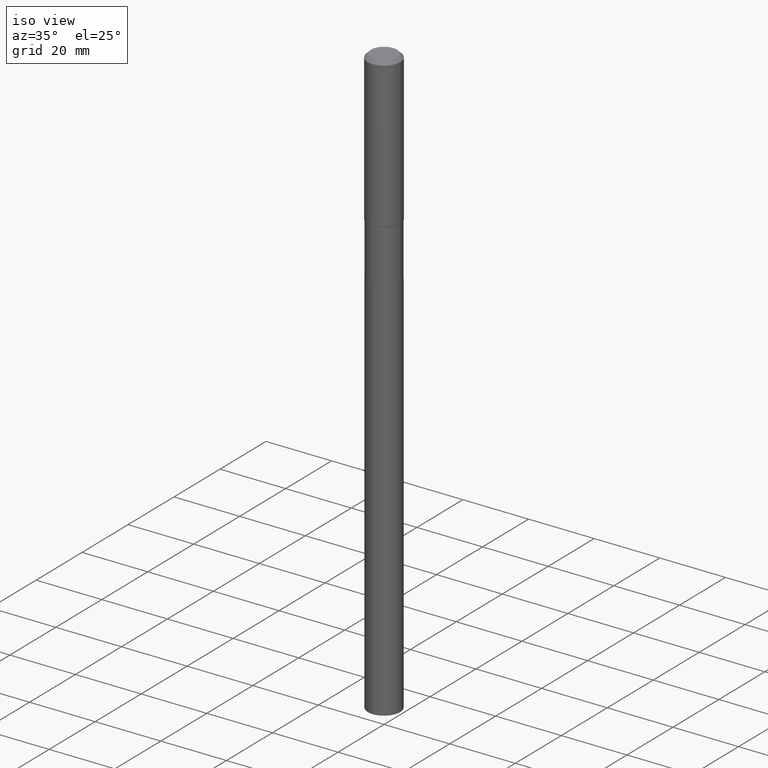
[diagram: clean part render]
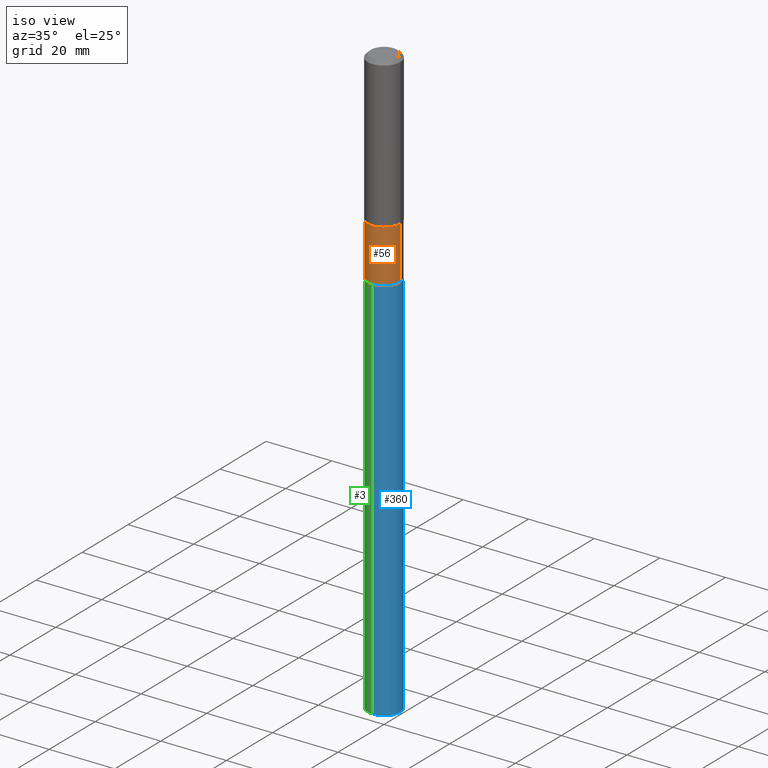
[diagram: same view with three faces highlighted in distinct colors, each labeled with its STEP entity id]
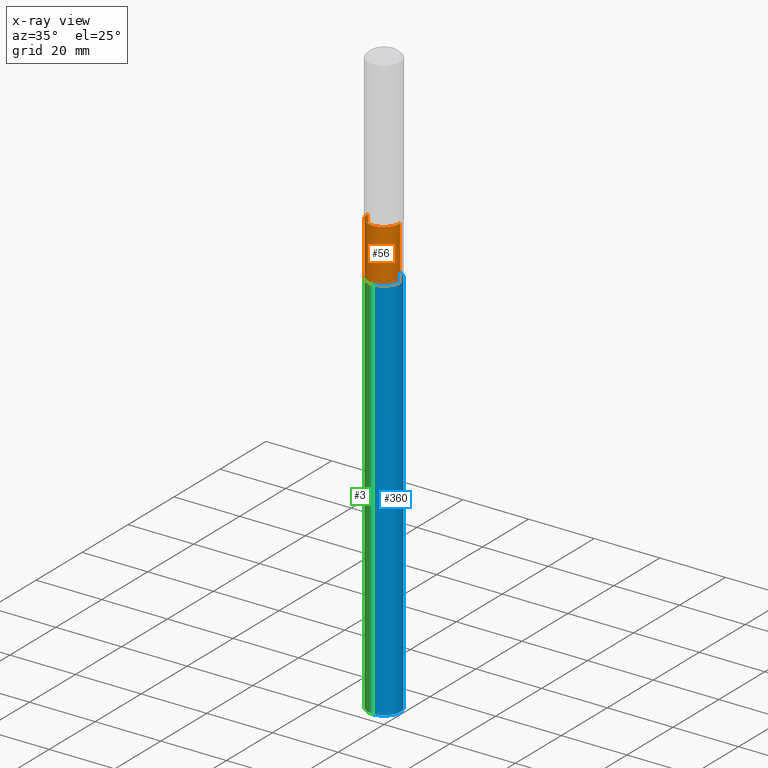
[diagram: x-ray of the same camera — body ghosted, the three highlighted faces saturated]
A machine part, iso view with three faces highlighted in distinct colors.
The next image is the same camera in x-ray (body ghosted, the three faces saturated) — at least one of them is partly hidden behind the body in this view.
Their STEP definitions:

[orange] entity #56 — the highlighted cylindrical surface (edge-blend (fillet) strip) has radius 4.8997 mm, axis along (-0, 0, 1).
#34 = ORIENTED_EDGE ( 'NONE', *, *, #50, .T. ) ;
#37 = CARTESIAN_POINT ( 'NONE',  ( -0.1928999999999999326, 1.370636937281232780E-15, -9.488625789101710361E-30 ) ) ;
#50 = EDGE_CURVE ( 'NONE', #213, #103, #292, .T. ) ;
#56 = ADVANCED_FACE ( 'NONE', ( #440 ), #402, .T. ) ;
#64 = ORIENTED_EDGE ( 'NONE', *, *, #459, .F. ) ;
#67 = DIRECTION ( 'NONE',  ( -2.445468806185136597E-29, 3.491481338843145583E-15, 1.000000000000000000 ) ) ;
#68 = ORIENTED_EDGE ( 'NONE', *, *, #209, .F. ) ;
#85 = AXIS2_PLACEMENT_3D ( 'NONE', #266, #180, #334 ) ;
#88 = AXIS2_PLACEMENT_3D ( 'NONE', #118, #67, #105 ) ;
#103 = VERTEX_POINT ( 'NONE', #416 ) ;
#105 = DIRECTION ( 'NONE',  ( 1.000000000000000000, -6.982962677686267499E-15, 4.876176775795936353E-29 ) ) ;
#110 = CARTESIAN_POINT ( 'NONE',  ( 0.1928999999999999326, -1.347013500525680471E-15, 9.406145000510357801E-30 ) ) ;
#118 = CARTESIAN_POINT ( 'NONE',  ( 0.000000000000000000, 0.000000000000000000, 0.000000000000000000 ) ) ;
#121 = DIRECTION ( 'NONE',  ( -2.445468806185136597E-29, 3.491481338843145583E-15, 1.000000000000000000 ) ) ;
#128 = VECTOR ( 'NONE', #405, 39.37007874015748143 ) ;
#139 = VERTEX_POINT ( 'NONE', #219 ) ;
#143 = DIRECTION ( 'NONE',  ( -2.445468806185136877E-29, 3.491481338843145188E-15, 1.000000000000000000 ) ) ;
#180 = DIRECTION ( 'NONE',  ( -2.445468806185136597E-29, 3.491481338843145583E-15, 1.000000000000000000 ) ) ;
#187 = EDGE_CURVE ( 'NONE', #460, #213, #453, .T. ) ;
#195 = EDGE_LOOP ( 'NONE', ( #68, #488, #34, #64 ) ) ;
#209 = EDGE_CURVE ( 'NONE', #460, #139, #379, .T. ) ;
#213 = VERTEX_POINT ( 'NONE', #484 ) ;
#219 = CARTESIAN_POINT ( 'NONE',  ( -0.1928999999999999049, -5.996912409878630018E-15, -1.792099999999999804 ) ) ;
#229 = CARTESIAN_POINT ( 'NONE',  ( 5.938087355178748159E-29, -8.478014986978924408E-15, -2.428199999999999914 ) ) ;
#232 = DIRECTION ( 'NONE',  ( 1.000000000000000000, -6.982962677686264344E-15, 0.000000000000000000 ) ) ;
#246 = AXIS2_PLACEMENT_3D ( 'NONE', #229, #121, #232 ) ;
#256 = VECTOR ( 'NONE', #143, 39.37007874015748143 ) ;
#266 = CARTESIAN_POINT ( 'NONE',  ( 4.382524647564382413E-29, -6.257083707340800005E-15, -1.792099999999999804 ) ) ;
#292 = LINE ( 'NONE', #110, #256 ) ;
#296 = CIRCLE ( 'NONE', #85, 0.1928999999999999049 ) ;
#334 = DIRECTION ( 'NONE',  ( 1.000000000000000000, -6.982962677686267499E-15, 0.000000000000000000 ) ) ;
#377 = CARTESIAN_POINT ( 'NONE',  ( -0.1928999999999999881, -5.996912409878630018E-15, -2.428199999999999914 ) ) ;
#379 = LINE ( 'NONE', #37, #128 ) ;
#402 = CYLINDRICAL_SURFACE ( 'NONE', #88, 0.1928999999999999326 ) ;
#405 = DIRECTION ( 'NONE',  ( -2.445468806185136877E-29, 3.491481338843145188E-15, 1.000000000000000000 ) ) ;
#416 = CARTESIAN_POINT ( 'NONE',  ( 0.1928999999999999049, -7.604097207866481068E-15, -1.792099999999999804 ) ) ;
#440 = FACE_OUTER_BOUND ( 'NONE', #195, .T. ) ;
#453 = CIRCLE ( 'NONE', #246, 0.1928999999999999881 ) ;
#459 = EDGE_CURVE ( 'NONE', #139, #103, #296, .T. ) ;
#460 = VERTEX_POINT ( 'NONE', #377 ) ;
#484 = CARTESIAN_POINT ( 'NONE',  ( 0.1928999999999999881, -9.825028487504605471E-15, -2.428199999999999914 ) ) ;
#488 = ORIENTED_EDGE ( 'NONE', *, *, #187, .T. ) ;

[blue] entity #360 — the highlighted cylindrical surface (edge-blend (fillet) strip) has radius 4.8997 mm, axis along (-0, 0, 1).
#19 = VERTEX_POINT ( 'NONE', #447 ) ;
#28 = DIRECTION ( 'NONE',  ( -6.982962677686265133E-15, -1.000000000000000000, 2.832398127179122126E-15 ) ) ;
#42 = EDGE_CURVE ( 'NONE', #19, #291, #466, .T. ) ;
#43 = VECTOR ( 'NONE', #204, 39.37007874015748143 ) ;
#69 = DIRECTION ( 'NONE',  ( -2.445442848827032230E-29, 3.491518511257351844E-15, 1.000000000000000000 ) ) ;
#75 = CARTESIAN_POINT ( 'NONE',  ( 1.370636937281406526E-15, 0.1928999999999752579, -7.089014669253879575 ) ) ;
#79 = CYLINDRICAL_SURFACE ( 'NONE', #208, 0.1928999999999999881 ) ;
#81 = EDGE_CURVE ( 'NONE', #436, #291, #220, .T. ) ;
#86 = CARTESIAN_POINT ( 'NONE',  ( 1.733584327079245706E-28, -2.475133566363245004E-14, -7.089014669253878687 ) ) ;
#93 = VECTOR ( 'NONE', #265, 39.37007874015748143 ) ;
#98 = AXIS2_PLACEMENT_3D ( 'NONE', #86, #239, #418 ) ;
#171 = CIRCLE ( 'NONE', #98, 0.1928999999999999881 ) ;
#203 = AXIS2_PLACEMENT_3D ( 'NONE', #397, #69, #28 ) ;
#204 = DIRECTION ( 'NONE',  ( -2.445442848827032230E-29, 3.491518511257351844E-15, 1.000000000000000000 ) ) ;
#208 = AXIS2_PLACEMENT_3D ( 'NONE', #482, #400, #382 ) ;
#220 = LINE ( 'NONE', #406, #93 ) ;
#239 = DIRECTION ( 'NONE',  ( -2.445442848827032230E-29, 3.491518511257351844E-15, 1.000000000000000000 ) ) ;
#240 = CARTESIAN_POINT ( 'NONE',  ( -1.347013500525621110E-15, -0.1929000000000084536, -2.428699999999999193 ) ) ;
#265 = DIRECTION ( 'NONE',  ( -2.445442848827032230E-29, 3.491518511257351844E-15, 1.000000000000000000 ) ) ;
#273 = ORIENTED_EDGE ( 'NONE', *, *, #81, .T. ) ;
#291 = VERTEX_POINT ( 'NONE', #432 ) ;
#305 = CARTESIAN_POINT ( 'NONE',  ( -1.347013500525507514E-15, -0.1929000000000247739, -7.089014669253877798 ) ) ;
#318 = EDGE_CURVE ( 'NONE', #456, #19, #425, .T. ) ;
#335 = ORIENTED_EDGE ( 'NONE', *, *, #318, .F. ) ;
#360 = ADVANCED_FACE ( 'NONE', ( #476 ), #79, .T. ) ;
#366 = ORIENTED_EDGE ( 'NONE', *, *, #42, .F. ) ;
#374 = EDGE_LOOP ( 'NONE', ( #414, #273, #366, #335 ) ) ;
#382 = DIRECTION ( 'NONE',  ( -6.982962677686265133E-15, -1.000000000000000000, 2.832398127179122126E-15 ) ) ;
#397 = CARTESIAN_POINT ( 'NONE',  ( 5.939310089581840960E-29, -8.479760727648346701E-15, -2.428699999999999637 ) ) ;
#400 = DIRECTION ( 'NONE',  ( -2.445442848827032230E-29, 3.491518511257351844E-15, 1.000000000000000000 ) ) ;
#406 = CARTESIAN_POINT ( 'NONE',  ( 1.370636937281292339E-15, 0.1928999999999914949, -2.428700000000000081 ) ) ;
#414 = ORIENTED_EDGE ( 'NONE', *, *, #486, .T. ) ;
#418 = DIRECTION ( 'NONE',  ( -6.982962677686265133E-15, -1.000000000000000000, 5.664796254358244252E-15 ) ) ;
#425 = LINE ( 'NONE', #240, #43 ) ;
#432 = CARTESIAN_POINT ( 'NONE',  ( 1.370636937281407513E-15, 0.1928999999999915504, -2.428700000000000081 ) ) ;
#436 = VERTEX_POINT ( 'NONE', #75 ) ;
#447 = CARTESIAN_POINT ( 'NONE',  ( -1.347013500525621110E-15, -0.1929000000000084536, -2.428699999999999193 ) ) ;
#456 = VERTEX_POINT ( 'NONE', #305 ) ;
#466 = CIRCLE ( 'NONE', #203, 0.1928999999999999881 ) ;
#476 = FACE_OUTER_BOUND ( 'NONE', #374, .T. ) ;
#482 = CARTESIAN_POINT ( 'NONE',  ( 5.939310089581840960E-29, -8.479760727648346701E-15, -2.428699999999999637 ) ) ;
#486 = EDGE_CURVE ( 'NONE', #456, #436, #171, .T. ) ;

[green] entity #3 — the highlighted cylindrical surface (edge-blend (fillet) strip) has radius 4.8997 mm, axis along (-0, 0, 1).
#3 = ADVANCED_FACE ( 'NONE', ( #223 ), #257, .T. ) ;
#19 = VERTEX_POINT ( 'NONE', #447 ) ;
#21 = ORIENTED_EDGE ( 'NONE', *, *, #318, .T. ) ;
#27 = ORIENTED_EDGE ( 'NONE', *, *, #350, .T. ) ;
#40 = DIRECTION ( 'NONE',  ( -6.982962677686265133E-15, -1.000000000000000000, 5.664796254358244252E-15 ) ) ;
#43 = VECTOR ( 'NONE', #204, 39.37007874015748143 ) ;
#53 = DIRECTION ( 'NONE',  ( -6.982962677686265133E-15, -1.000000000000000000, 2.832398127179122126E-15 ) ) ;
#57 = CIRCLE ( 'NONE', #411, 0.1928999999999999881 ) ;
#74 = ORIENTED_EDGE ( 'NONE', *, *, #81, .F. ) ;
#75 = CARTESIAN_POINT ( 'NONE',  ( 1.370636937281406526E-15, 0.1928999999999752579, -7.089014669253879575 ) ) ;
#81 = EDGE_CURVE ( 'NONE', #436, #291, #220, .T. ) ;
#93 = VECTOR ( 'NONE', #265, 39.37007874015748143 ) ;
#107 = ORIENTED_EDGE ( 'NONE', *, *, #142, .F. ) ;
#142 = EDGE_CURVE ( 'NONE', #291, #19, #463, .T. ) ;
#153 = DIRECTION ( 'NONE',  ( -2.445442848827032230E-29, 3.491518511257351844E-15, 1.000000000000000000 ) ) ;
#176 = CARTESIAN_POINT ( 'NONE',  ( 5.939310089581840960E-29, -8.479760727648346701E-15, -2.428699999999999637 ) ) ;
#188 = DIRECTION ( 'NONE',  ( -2.445442848827032230E-29, 3.491518511257351844E-15, 1.000000000000000000 ) ) ;
#204 = DIRECTION ( 'NONE',  ( -2.445442848827032230E-29, 3.491518511257351844E-15, 1.000000000000000000 ) ) ;
#220 = LINE ( 'NONE', #406, #93 ) ;
#223 = FACE_OUTER_BOUND ( 'NONE', #480, .T. ) ;
#240 = CARTESIAN_POINT ( 'NONE',  ( -1.347013500525621110E-15, -0.1929000000000084536, -2.428699999999999193 ) ) ;
#257 = CYLINDRICAL_SURFACE ( 'NONE', #464, 0.1928999999999999881 ) ;
#265 = DIRECTION ( 'NONE',  ( -2.445442848827032230E-29, 3.491518511257351844E-15, 1.000000000000000000 ) ) ;
#291 = VERTEX_POINT ( 'NONE', #432 ) ;
#304 = DIRECTION ( 'NONE',  ( -6.982962677686265133E-15, -1.000000000000000000, 2.832398127179122126E-15 ) ) ;
#305 = CARTESIAN_POINT ( 'NONE',  ( -1.347013500525507514E-15, -0.1929000000000247739, -7.089014669253877798 ) ) ;
#318 = EDGE_CURVE ( 'NONE', #456, #19, #425, .T. ) ;
#319 = CARTESIAN_POINT ( 'NONE',  ( 5.939310089581840960E-29, -8.479760727648346701E-15, -2.428699999999999637 ) ) ;
#339 = CARTESIAN_POINT ( 'NONE',  ( 1.733584327079245706E-28, -2.475133566363245004E-14, -7.089014669253878687 ) ) ;
#350 = EDGE_CURVE ( 'NONE', #436, #456, #57, .T. ) ;
#370 = DIRECTION ( 'NONE',  ( -2.445442848827032230E-29, 3.491518511257351844E-15, 1.000000000000000000 ) ) ;
#406 = CARTESIAN_POINT ( 'NONE',  ( 1.370636937281292339E-15, 0.1928999999999914949, -2.428700000000000081 ) ) ;
#411 = AXIS2_PLACEMENT_3D ( 'NONE', #339, #188, #40 ) ;
#425 = LINE ( 'NONE', #240, #43 ) ;
#432 = CARTESIAN_POINT ( 'NONE',  ( 1.370636937281407513E-15, 0.1928999999999915504, -2.428700000000000081 ) ) ;
#436 = VERTEX_POINT ( 'NONE', #75 ) ;
#443 = AXIS2_PLACEMENT_3D ( 'NONE', #319, #370, #53 ) ;
#447 = CARTESIAN_POINT ( 'NONE',  ( -1.347013500525621110E-15, -0.1929000000000084536, -2.428699999999999193 ) ) ;
#456 = VERTEX_POINT ( 'NONE', #305 ) ;
#463 = CIRCLE ( 'NONE', #443, 0.1928999999999999881 ) ;
#464 = AXIS2_PLACEMENT_3D ( 'NONE', #176, #153, #304 ) ;
#480 = EDGE_LOOP ( 'NONE', ( #74, #27, #21, #107 ) ) ;